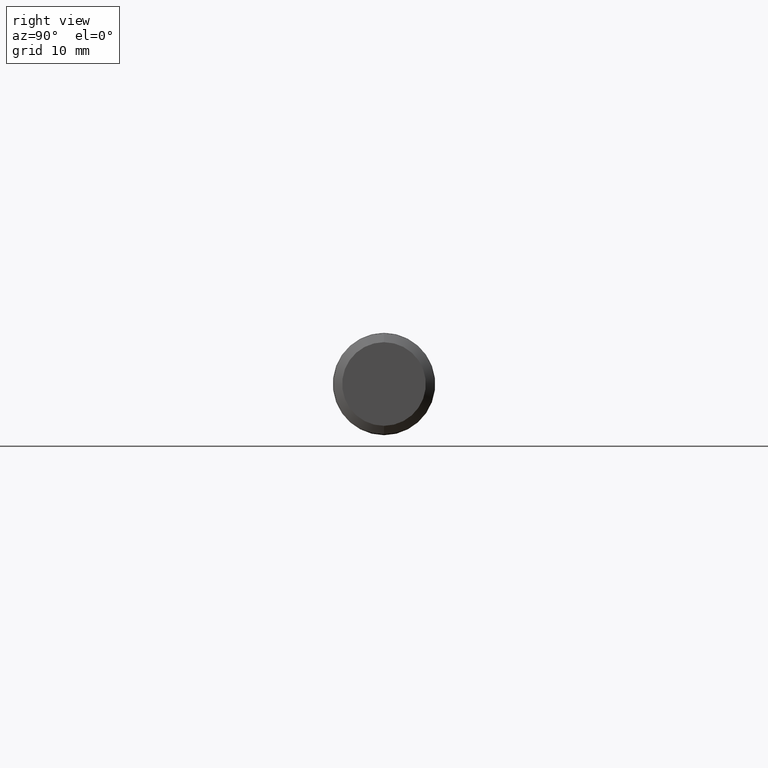
[diagram: clean part render]
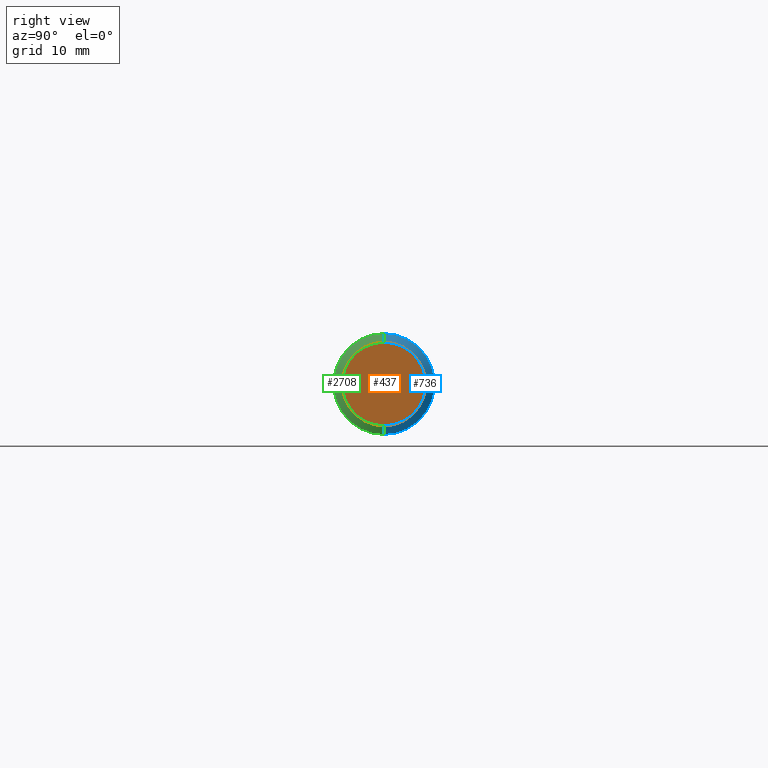
[diagram: same view with three faces highlighted in distinct colors, each labeled with its STEP entity id]
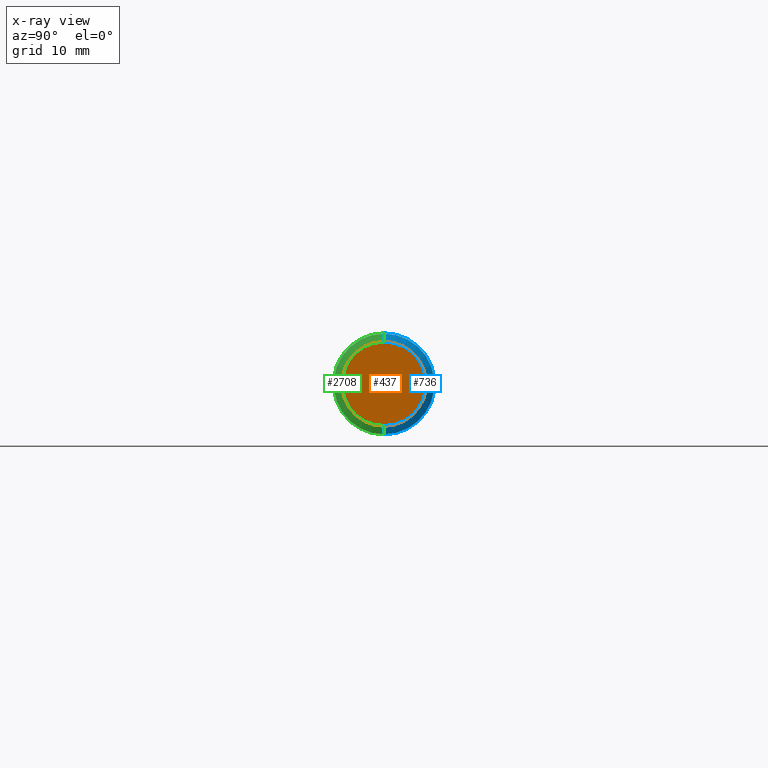
[diagram: x-ray of the same camera — body ghosted, the three highlighted faces saturated]
A machine part, right view with three faces highlighted in distinct colors.
The next image is the same camera in x-ray (body ghosted, the three faces saturated) — at least one of them is partly hidden behind the body in this view.
Their STEP definitions:

[orange] entity #437 — the highlighted planar face has unit normal (-1, 0, -0).
#9 = CARTESIAN_POINT ( 'NONE',  ( 3.500000000000000000, 0.000000000000000000, 0.2041586780110656862 ) ) ;
#154 = CARTESIAN_POINT ( 'NONE',  ( 3.500000000000000000, 2.500222715444067203E-17, -0.2041586780110656862 ) ) ;
#246 = EDGE_LOOP ( 'NONE', ( #1022, #1845 ) ) ;
#367 = DIRECTION ( 'NONE',  ( -1.000000000000000000, -0.000000000000000000, -0.000000000000000000 ) ) ;
#400 = CARTESIAN_POINT ( 'NONE',  ( 3.500000000000000000, 0.000000000000000000, 0.000000000000000000 ) ) ;
#424 = AXIS2_PLACEMENT_3D ( 'NONE', #400, #367, #1919 ) ;
#437 = ADVANCED_FACE ( 'NONE', ( #993 ), #2776, .F. ) ;
#448 = DIRECTION ( 'NONE',  ( -0.000000000000000000, 0.000000000000000000, 1.000000000000000000 ) ) ;
#463 = DIRECTION ( 'NONE',  ( -1.000000000000000000, 0.000000000000000000, -0.000000000000000000 ) ) ;
#885 = VERTEX_POINT ( 'NONE', #9 ) ;
#993 = FACE_OUTER_BOUND ( 'NONE', #246, .T. ) ;
#1009 = CARTESIAN_POINT ( 'NONE',  ( 3.500000000000000000, 0.2459999999999999964, 0.000000000000000000 ) ) ;
#1022 = ORIENTED_EDGE ( 'NONE', *, *, #1910, .F. ) ;
#1295 = CIRCLE ( 'NONE', #424, 0.2041586780110656862 ) ;
#1601 = CARTESIAN_POINT ( 'NONE',  ( 3.500000000000000000, 0.000000000000000000, 0.000000000000000000 ) ) ;
#1614 = DIRECTION ( 'NONE',  ( 0.000000000000000000, 0.000000000000000000, 1.000000000000000000 ) ) ;
#1845 = ORIENTED_EDGE ( 'NONE', *, *, #2869, .F. ) ;
#1910 = EDGE_CURVE ( 'NONE', #885, #2646, #3290, .T. ) ;
#1919 = DIRECTION ( 'NONE',  ( 0.000000000000000000, 0.000000000000000000, 1.000000000000000000 ) ) ;
#2620 = DIRECTION ( 'NONE',  ( -1.000000000000000000, -0.000000000000000000, -0.000000000000000000 ) ) ;
#2646 = VERTEX_POINT ( 'NONE', #154 ) ;
#2776 = PLANE ( 'NONE',  #2841 ) ;
#2841 = AXIS2_PLACEMENT_3D ( 'NONE', #1009, #463, #448 ) ;
#2869 = EDGE_CURVE ( 'NONE', #2646, #885, #1295, .T. ) ;
#3076 = AXIS2_PLACEMENT_3D ( 'NONE', #1601, #2620, #1614 ) ;
#3290 = CIRCLE ( 'NONE', #3076, 0.2041586780110656862 ) ;

[blue] entity #736 — the highlighted conical surface has half-angle 60.25 deg.
#119 = AXIS2_PLACEMENT_3D ( 'NONE', #879, #2952, #2165 ) ;
#127 = VERTEX_POINT ( 'NONE', #1397 ) ;
#203 = ORIENTED_EDGE ( 'NONE', *, *, #2325, .T. ) ;
#297 = DIRECTION ( 'NONE',  ( -0.4962165036751993163, 0.000000000000000000, 0.8681988144891473747 ) ) ;
#337 = DIRECTION ( 'NONE',  ( 0.000000000000000000, 0.000000000000000000, 1.000000000000000000 ) ) ;
#342 = CIRCLE ( 'NONE', #1637, 0.2041586780110656862 ) ;
#460 = ORIENTED_EDGE ( 'NONE', *, *, #1050, .T. ) ;
#479 = ORIENTED_EDGE ( 'NONE', *, *, #1045, .F. ) ;
#517 = LINE ( 'NONE', #3029, #1025 ) ;
#529 = DIRECTION ( 'NONE',  ( -1.000000000000000000, -0.000000000000000000, -0.000000000000000000 ) ) ;
#736 = ADVANCED_FACE ( 'NONE', ( #1358 ), #2590, .T. ) ;
#756 = CIRCLE ( 'NONE', #2479, 0.2459999999999999964 ) ;
#879 = CARTESIAN_POINT ( 'NONE',  ( 3.459369058252695694, 0.000000000000000000, 0.000000000000000000 ) ) ;
#1025 = VECTOR ( 'NONE', #2494, 39.37007874015748143 ) ;
#1045 = EDGE_CURVE ( 'NONE', #2268, #1968, #3134, .T. ) ;
#1050 = EDGE_CURVE ( 'NONE', #127, #1968, #756, .T. ) ;
#1059 = CARTESIAN_POINT ( 'NONE',  ( 3.494714285714285218, 0.000000000000000000, 0.2041586780110656862 ) ) ;
#1358 = FACE_OUTER_BOUND ( 'NONE', #1631, .T. ) ;
#1397 = CARTESIAN_POINT ( 'NONE',  ( 3.470800000000000107, 3.012631125902483451E-17, -0.2459999999999995524 ) ) ;
#1623 = CARTESIAN_POINT ( 'NONE',  ( 3.470800000000000107, 0.000000000000000000, 0.000000000000000000 ) ) ;
#1631 = EDGE_LOOP ( 'NONE', ( #203, #2062, #460, #479 ) ) ;
#1637 = AXIS2_PLACEMENT_3D ( 'NONE', #2839, #529, #2362 ) ;
#1645 = CARTESIAN_POINT ( 'NONE',  ( 3.470800000000000107, 0.000000000000000000, 0.2459999999999995524 ) ) ;
#1759 = CARTESIAN_POINT ( 'NONE',  ( 3.494714285714285218, 2.500222715444067203E-17, -0.2041586780110656862 ) ) ;
#1968 = VERTEX_POINT ( 'NONE', #1645 ) ;
#2062 = ORIENTED_EDGE ( 'NONE', *, *, #2998, .T. ) ;
#2165 = DIRECTION ( 'NONE',  ( 0.000000000000000000, 0.000000000000000000, 1.000000000000000000 ) ) ;
#2268 = VERTEX_POINT ( 'NONE', #1059 ) ;
#2325 = EDGE_CURVE ( 'NONE', #2268, #3013, #342, .T. ) ;
#2362 = DIRECTION ( 'NONE',  ( 0.000000000000000000, 0.000000000000000000, 1.000000000000000000 ) ) ;
#2479 = AXIS2_PLACEMENT_3D ( 'NONE', #1623, #2642, #337 ) ;
#2494 = DIRECTION ( 'NONE',  ( -0.4962165036751993163, 1.063236899187661079E-16, -0.8681988144891473747 ) ) ;
#2590 = CONICAL_SURFACE ( 'NONE', #119, 0.2659999999999999587, 1.051560874326593842 ) ;
#2642 = DIRECTION ( 'NONE',  ( 1.000000000000000000, 0.000000000000000000, 0.000000000000000000 ) ) ;
#2839 = CARTESIAN_POINT ( 'NONE',  ( 3.494714285714285218, 0.000000000000000000, 0.000000000000000000 ) ) ;
#2882 = CARTESIAN_POINT ( 'NONE',  ( 3.459369058252695694, 0.000000000000000000, 0.2659999999999999587 ) ) ;
#2952 = DIRECTION ( 'NONE',  ( -1.000000000000000000, -0.000000000000000000, -0.000000000000000000 ) ) ;
#2998 = EDGE_CURVE ( 'NONE', #3013, #127, #517, .T. ) ;
#3013 = VERTEX_POINT ( 'NONE', #1759 ) ;
#3029 = CARTESIAN_POINT ( 'NONE',  ( 3.459369058252695694, 3.257560485731959097E-17, -0.2659999999999999587 ) ) ;
#3134 = LINE ( 'NONE', #2882, #3282 ) ;
#3282 = VECTOR ( 'NONE', #297, 39.37007874015748143 ) ;

[green] entity #2708 — the highlighted conical surface has half-angle 60.25 deg.
#127 = VERTEX_POINT ( 'NONE', #1397 ) ;
#297 = DIRECTION ( 'NONE',  ( -0.4962165036751993163, 0.000000000000000000, 0.8681988144891473747 ) ) ;
#374 = DIRECTION ( 'NONE',  ( -1.000000000000000000, -0.000000000000000000, -0.000000000000000000 ) ) ;
#407 = ORIENTED_EDGE ( 'NONE', *, *, #1045, .T. ) ;
#517 = LINE ( 'NONE', #3029, #1025 ) ;
#537 = CIRCLE ( 'NONE', #2053, 0.2041586780110656862 ) ;
#755 = EDGE_CURVE ( 'NONE', #3013, #2268, #537, .T. ) ;
#1025 = VECTOR ( 'NONE', #2494, 39.37007874015748143 ) ;
#1037 = CIRCLE ( 'NONE', #2643, 0.2459999999999999964 ) ;
#1038 = FACE_OUTER_BOUND ( 'NONE', #2080, .T. ) ;
#1045 = EDGE_CURVE ( 'NONE', #2268, #1968, #3134, .T. ) ;
#1059 = CARTESIAN_POINT ( 'NONE',  ( 3.494714285714285218, 0.000000000000000000, 0.2041586780110656862 ) ) ;
#1216 = ORIENTED_EDGE ( 'NONE', *, *, #1830, .T. ) ;
#1323 = AXIS2_PLACEMENT_3D ( 'NONE', #2067, #1378, #3086 ) ;
#1330 = DIRECTION ( 'NONE',  ( 1.000000000000000000, 0.000000000000000000, 0.000000000000000000 ) ) ;
#1344 = ORIENTED_EDGE ( 'NONE', *, *, #2998, .F. ) ;
#1378 = DIRECTION ( 'NONE',  ( -1.000000000000000000, -0.000000000000000000, -0.000000000000000000 ) ) ;
#1397 = CARTESIAN_POINT ( 'NONE',  ( 3.470800000000000107, 3.012631125902483451E-17, -0.2459999999999995524 ) ) ;
#1403 = DIRECTION ( 'NONE',  ( 0.000000000000000000, 0.000000000000000000, 1.000000000000000000 ) ) ;
#1645 = CARTESIAN_POINT ( 'NONE',  ( 3.470800000000000107, 0.000000000000000000, 0.2459999999999995524 ) ) ;
#1658 = CARTESIAN_POINT ( 'NONE',  ( 3.494714285714285218, 0.000000000000000000, 0.000000000000000000 ) ) ;
#1759 = CARTESIAN_POINT ( 'NONE',  ( 3.494714285714285218, 2.500222715444067203E-17, -0.2041586780110656862 ) ) ;
#1804 = DIRECTION ( 'NONE',  ( 0.000000000000000000, 0.000000000000000000, 1.000000000000000000 ) ) ;
#1830 = EDGE_CURVE ( 'NONE', #1968, #127, #1037, .T. ) ;
#1968 = VERTEX_POINT ( 'NONE', #1645 ) ;
#2053 = AXIS2_PLACEMENT_3D ( 'NONE', #1658, #374, #1403 ) ;
#2067 = CARTESIAN_POINT ( 'NONE',  ( 3.459369058252695694, 0.000000000000000000, 0.000000000000000000 ) ) ;
#2080 = EDGE_LOOP ( 'NONE', ( #1344, #2349, #407, #1216 ) ) ;
#2268 = VERTEX_POINT ( 'NONE', #1059 ) ;
#2349 = ORIENTED_EDGE ( 'NONE', *, *, #755, .T. ) ;
#2494 = DIRECTION ( 'NONE',  ( -0.4962165036751993163, 1.063236899187661079E-16, -0.8681988144891473747 ) ) ;
#2610 = CONICAL_SURFACE ( 'NONE', #1323, 0.2659999999999999587, 1.051560874326593842 ) ;
#2643 = AXIS2_PLACEMENT_3D ( 'NONE', #2889, #1330, #1804 ) ;
#2708 = ADVANCED_FACE ( 'NONE', ( #1038 ), #2610, .T. ) ;
#2882 = CARTESIAN_POINT ( 'NONE',  ( 3.459369058252695694, 0.000000000000000000, 0.2659999999999999587 ) ) ;
#2889 = CARTESIAN_POINT ( 'NONE',  ( 3.470800000000000107, 0.000000000000000000, 0.000000000000000000 ) ) ;
#2998 = EDGE_CURVE ( 'NONE', #3013, #127, #517, .T. ) ;
#3013 = VERTEX_POINT ( 'NONE', #1759 ) ;
#3029 = CARTESIAN_POINT ( 'NONE',  ( 3.459369058252695694, 3.257560485731959097E-17, -0.2659999999999999587 ) ) ;
#3086 = DIRECTION ( 'NONE',  ( 0.000000000000000000, 0.000000000000000000, 1.000000000000000000 ) ) ;
#3134 = LINE ( 'NONE', #2882, #3282 ) ;
#3282 = VECTOR ( 'NONE', #297, 39.37007874015748143 ) ;